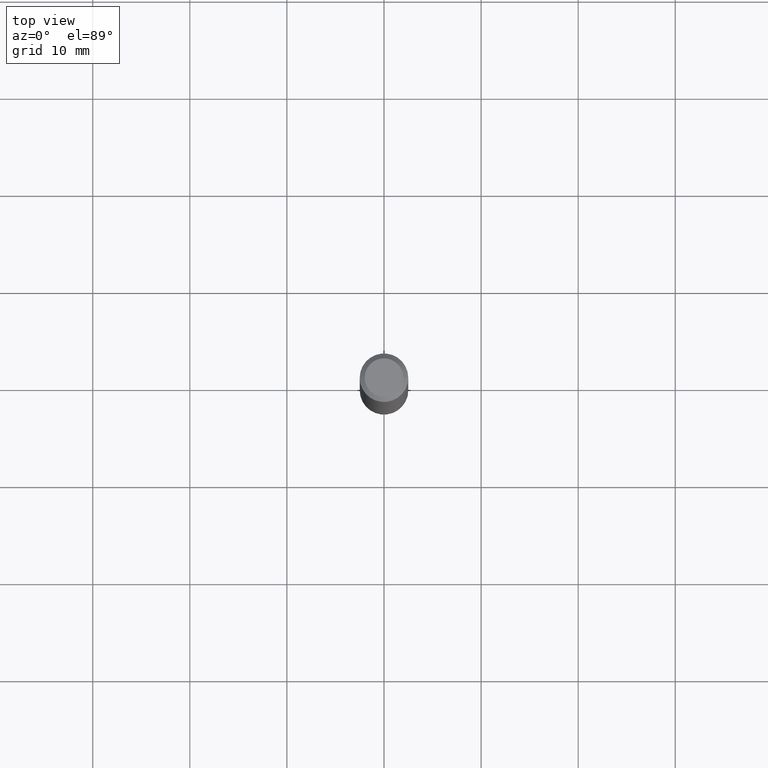
[diagram: clean part render]
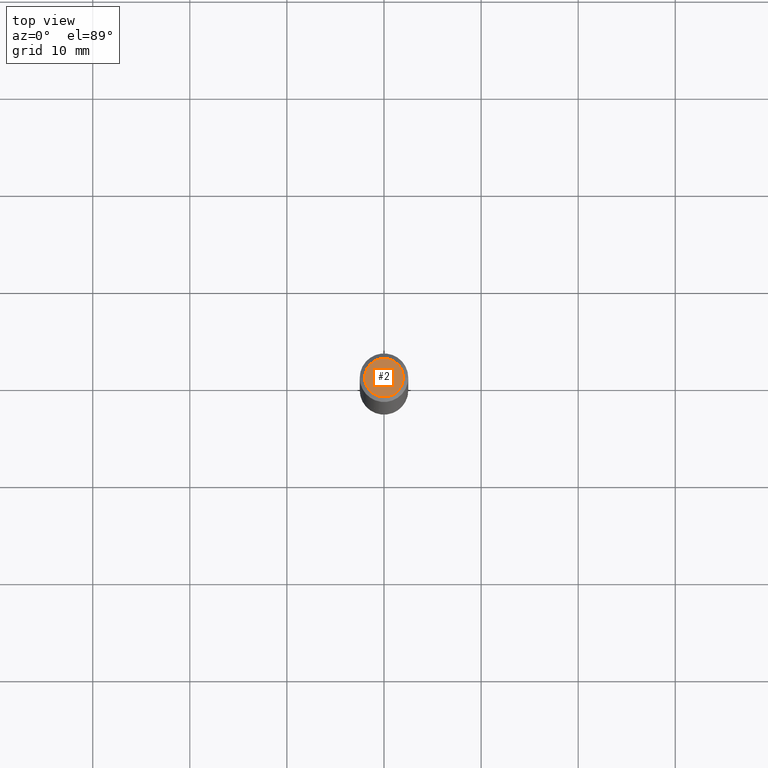
[diagram: same view with one face highlighted and labeled with its STEP entity id]
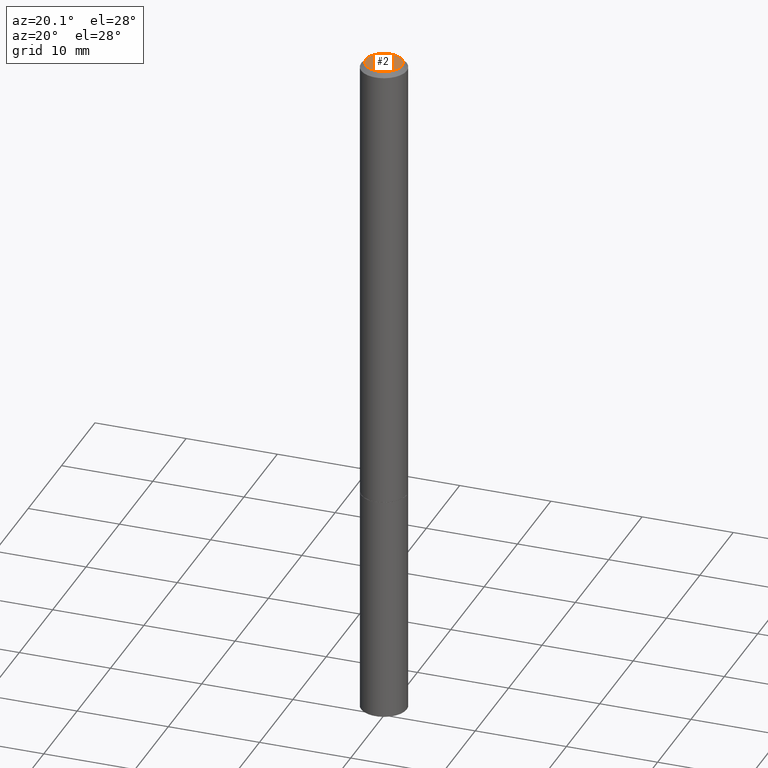
[diagram: same view with one face highlighted and labeled with its STEP entity id]
A machine part, top view. The second image highlights one B-rep face of the part: STEP entity #2.
A second angle (auxiliary view) of the same face is appended — the face is thin or edge-on in the first view.
In plain terms, the highlighted planar face has unit normal (0, -0, -1).
Its self-contained STEP definition (entity closure, byte-faithful):
#1 = ORIENTED_EDGE ( 'NONE', *, *, #266, .T. ) ;
#2 = ADVANCED_FACE ( 'NONE', ( #64 ), #167, .F. ) ;
#24 = CARTESIAN_POINT ( 'NONE',  ( 0.07844999999999976992, -6.417258612913216511E-16, -4.268512490096252041E-18 ) ) ;
#36 = VERTEX_POINT ( 'NONE', #247 ) ;
#39 = DIRECTION ( 'NONE',  ( -1.000000000000000000, 6.982962677686265922E-15, -4.876176775795935793E-29 ) ) ;
#64 = FACE_OUTER_BOUND ( 'NONE', #319, .T. ) ;
#97 = CARTESIAN_POINT ( 'NONE',  ( 5.478134220644859637E-16, 0.07844999999999976992, -2.760409672772941320E-16 ) ) ;
#115 = CARTESIAN_POINT ( 'NONE',  ( 1.043851414335219820E-46, -1.490343170380447200E-32, -4.268512490100411279E-18 ) ) ;
#131 = DIRECTION ( 'NONE',  ( 1.000000000000000000, -6.982962677686265922E-15, 4.876126812019107680E-29 ) ) ;
#167 = PLANE ( 'NONE',  #205 ) ;
#198 = AXIS2_PLACEMENT_3D ( 'NONE', #351, #279, #131 ) ;
#201 = CIRCLE ( 'NONE', #198, 0.07844999999999976992 ) ;
#205 = AXIS2_PLACEMENT_3D ( 'NONE', #97, #211, #39 ) ;
#211 = DIRECTION ( 'NONE',  ( 2.438088387897960049E-29, -3.491481338843145188E-15, -1.000000000000000000 ) ) ;
#235 = DIRECTION ( 'NONE',  ( 1.000000000000000000, -6.982962677686265922E-15, 4.876126812019107680E-29 ) ) ;
#247 = CARTESIAN_POINT ( 'NONE',  ( -0.07844999999999976992, 5.827282354529171197E-16, -4.268512490104364828E-18 ) ) ;
#253 = CIRCLE ( 'NONE', #302, 0.07844999999999976992 ) ;
#258 = VERTEX_POINT ( 'NONE', #24 ) ;
#266 = EDGE_CURVE ( 'NONE', #258, #36, #253, .T. ) ;
#279 = DIRECTION ( 'NONE',  ( -2.445468806185136597E-29, 3.491481338843145583E-15, 1.000000000000000000 ) ) ;
#295 = ORIENTED_EDGE ( 'NONE', *, *, #334, .T. ) ;
#302 = AXIS2_PLACEMENT_3D ( 'NONE', #115, #335, #235 ) ;
#319 = EDGE_LOOP ( 'NONE', ( #295, #1 ) ) ;
#334 = EDGE_CURVE ( 'NONE', #36, #258, #201, .T. ) ;
#335 = DIRECTION ( 'NONE',  ( -2.445468806185136597E-29, 3.491481338843145583E-15, 1.000000000000000000 ) ) ;
#351 = CARTESIAN_POINT ( 'NONE',  ( 1.043851414335219820E-46, -1.490343170380447200E-32, -4.268512490100411279E-18 ) ) ;